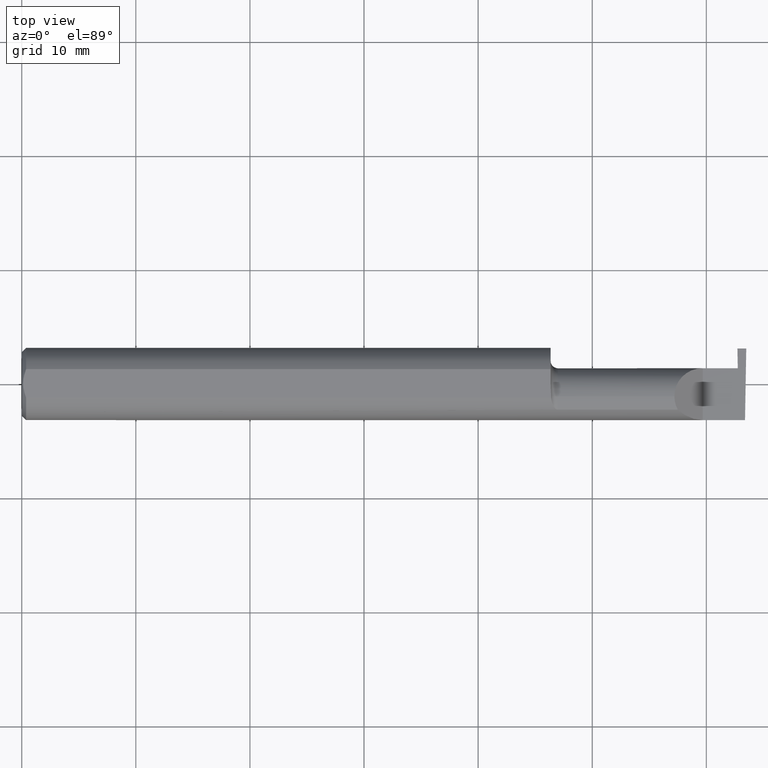
[diagram: clean part render]
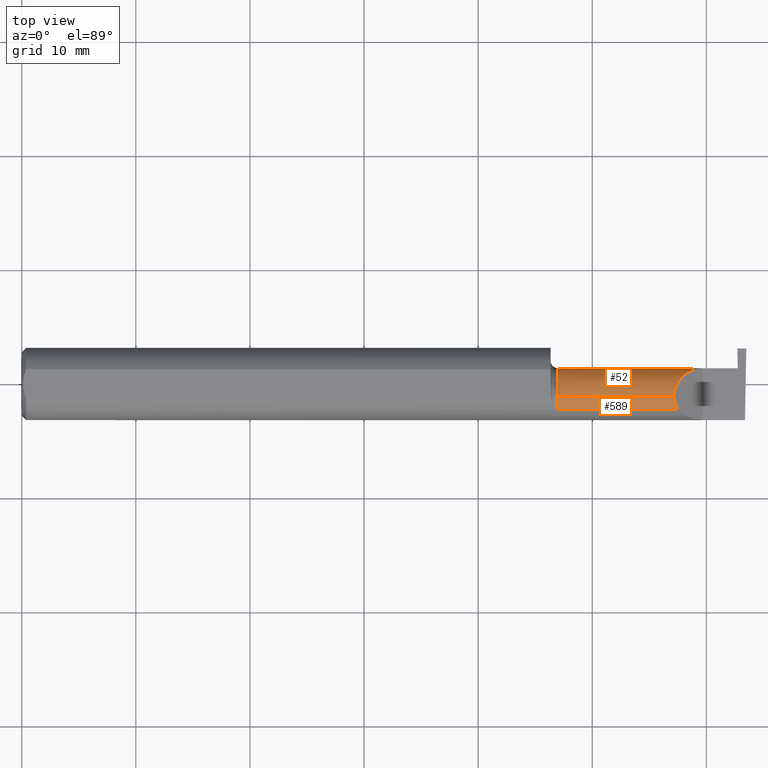
[diagram: same view with one multi-face feature highlighted, each face labeled with its STEP entity id]
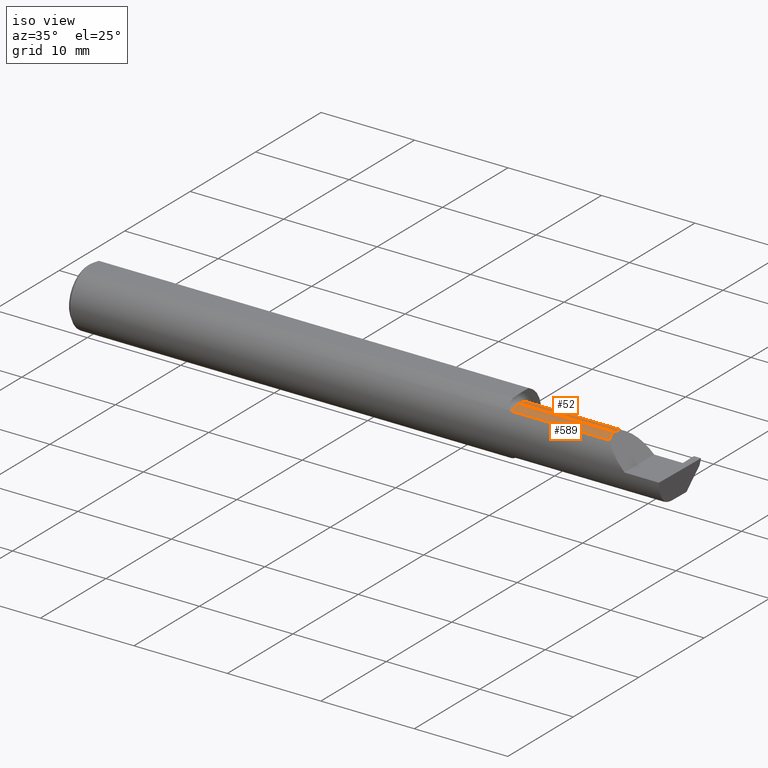
[diagram: same view with one multi-face feature highlighted, each face labeled with its STEP entity id]
A machine part, top view. The highlighted faces form ONE feature: a constant-radius fillet chain: 2 tangent blend faces with common blend radius 2.4892 mm. The faces share edges in the B-rep.
A second angle (iso view) of the same feature is appended — it is thin or edge-on in the first view.
Their STEP definitions:
[1] entity #589 (Cylinder):
#25 = VECTOR ( 'NONE', #637, 39.37007874015748143 ) ;
#94 = DIRECTION ( 'NONE',  ( 0.000000000000000000, 0.000000000000000000, 1.000000000000000000 ) ) ;
#103 = DIRECTION ( 'NONE',  ( -1.000000000000000000, -0.000000000000000000, -0.000000000000000000 ) ) ;
#115 =( BOUNDED_CURVE ( )  B_SPLINE_CURVE ( 3, ( #499, #616, #260, #745 ),
 .UNSPECIFIED., .F., .F. ) 
 B_SPLINE_CURVE_WITH_KNOTS ( ( 4, 4 ),
 ( 5.791092865617128993, 6.283185307179586232 ),
 .UNSPECIFIED. ) 
 CURVE ( )  GEOMETRIC_REPRESENTATION_ITEM ( )  RATIONAL_B_SPLINE_CURVE ( ( 1.000000000000000000, 0.9799220177372781615, 0.9799220177372781615, 1.000000000000000000 ) ) 
 REPRESENTATION_ITEM ( '' )  );
#133 = VERTEX_POINT ( 'NONE', #624 ) ;
#155 = ORIENTED_EDGE ( 'NONE', *, *, #322, .F. ) ;
#180 = CARTESIAN_POINT ( 'NONE',  ( 1.824999999999999956, -0.04385000000000001397, 0.09799999999999998990 ) ) ;
#186 = DIRECTION ( 'NONE',  ( 0.000000000000000000, 0.000000000000000000, 1.000000000000000000 ) ) ;
#191 = CARTESIAN_POINT ( 'NONE',  ( 2.263628075281542973, -0.09015216647662456506, 0.08637192471845794861 ) ) ;
#212 = CARTESIAN_POINT ( 'NONE',  ( 2.159749999999999837, -0.09015216647662485649, 0.08637192471845764330 ) ) ;
#243 = CIRCLE ( 'NONE', #560, 0.09799999999999998990 ) ;
#260 = CARTESIAN_POINT ( 'NONE',  ( 2.252000000000000668, -0.06008937020638518284, 0.09799999999999996214 ) ) ;
#275 = LINE ( 'NONE', #212, #25 ) ;
#297 = ORIENTED_EDGE ( 'NONE', *, *, #617, .T. ) ;
#322 = EDGE_CURVE ( 'NONE', #728, #563, #243, .T. ) ;
#326 = ORIENTED_EDGE ( 'NONE', *, *, #375, .T. ) ;
#351 = CARTESIAN_POINT ( 'NONE',  ( 1.824999999999999956, -0.04385000000000001397, 0.000000000000000000 ) ) ;
#375 = EDGE_CURVE ( 'NONE', #133, #563, #542, .T. ) ;
#394 = CYLINDRICAL_SURFACE ( 'NONE', #715, 0.09799999999999998990 ) ;
#415 = CARTESIAN_POINT ( 'NONE',  ( 1.849999999999999867, -0.04385000000000001397, 0.000000000000000000 ) ) ;
#434 = CARTESIAN_POINT ( 'NONE',  ( 1.849999999999999867, -0.04385000000000001397, 0.09800000000000000377 ) ) ;
#440 = FACE_OUTER_BOUND ( 'NONE', #641, .T. ) ;
#459 = VERTEX_POINT ( 'NONE', #191 ) ;
#499 = CARTESIAN_POINT ( 'NONE',  ( 2.263628075281542973, -0.09015216647662456506, 0.08637192471845794861 ) ) ;
#542 = LINE ( 'NONE', #180, #787 ) ;
#560 = AXIS2_PLACEMENT_3D ( 'NONE', #415, #598, #186 ) ;
#563 = VERTEX_POINT ( 'NONE', #434 ) ;
#568 = EDGE_CURVE ( 'NONE', #459, #133, #115, .T. ) ;
#583 = CARTESIAN_POINT ( 'NONE',  ( 1.849999999999999867, -0.09015216647662489813, 0.08637192471845762942 ) ) ;
#589 = ADVANCED_FACE ( 'NONE', ( #440 ), #394, .T. ) ;
#598 = DIRECTION ( 'NONE',  ( -1.000000000000000000, -0.000000000000000000, -0.000000000000000000 ) ) ;
#616 = CARTESIAN_POINT ( 'NONE',  ( 2.255955442396119004, -0.07583965973232800750, 0.09404455760388212571 ) ) ;
#617 = EDGE_CURVE ( 'NONE', #728, #459, #275, .T. ) ;
#624 = CARTESIAN_POINT ( 'NONE',  ( 2.252000000000000668, -0.04385000000000001397, 0.09799999999999998990 ) ) ;
#637 = DIRECTION ( 'NONE',  ( 1.000000000000000000, 0.000000000000000000, 0.000000000000000000 ) ) ;
#641 = EDGE_LOOP ( 'NONE', ( #691, #326, #155, #297 ) ) ;
#652 = DIRECTION ( 'NONE',  ( -1.000000000000000000, -0.000000000000000000, -0.000000000000000000 ) ) ;
#691 = ORIENTED_EDGE ( 'NONE', *, *, #568, .T. ) ;
#715 = AXIS2_PLACEMENT_3D ( 'NONE', #351, #103, #94 ) ;
#728 = VERTEX_POINT ( 'NONE', #583 ) ;
#745 = CARTESIAN_POINT ( 'NONE',  ( 2.252000000000000668, -0.04385000000000001397, 0.09799999999999998990 ) ) ;
#787 = VECTOR ( 'NONE', #652, 39.37007874015748143 ) ;
[2] entity #52 (Cylinder):
#4 = ORIENTED_EDGE ( 'NONE', *, *, #484, .F. ) ;
#8 = VERTEX_POINT ( 'NONE', #549 ) ;
#17 = DIRECTION ( 'NONE',  ( 0.000000000000000000, 0.000000000000000000, 1.000000000000000000 ) ) ;
#26 = LINE ( 'NONE', #625, #113 ) ;
#45 = DIRECTION ( 'NONE',  ( -1.000000000000000000, -0.000000000000000000, -0.000000000000000000 ) ) ;
#52 = ADVANCED_FACE ( 'NONE', ( #748 ), #204, .T. ) ;
#57 = AXIS2_PLACEMENT_3D ( 'NONE', #500, #213, #17 ) ;
#63 = EDGE_CURVE ( 'NONE', #681, #8, #738, .T. ) ;
#65 = ORIENTED_EDGE ( 'NONE', *, *, #544, .T. ) ;
#87 = CARTESIAN_POINT ( 'NONE',  ( 2.350000000000000089, 0.05414999999999985103, 1.836970198721028825E-17 ) ) ;
#113 = VECTOR ( 'NONE', #386, 39.37007874015748143 ) ;
#125 = AXIS2_PLACEMENT_3D ( 'NONE', #581, #45, #290 ) ;
#133 = VERTEX_POINT ( 'NONE', #624 ) ;
#134 = CARTESIAN_POINT ( 'NONE',  ( 2.474354867654527723, 0.002850604310161250488, -0.09800000000000003153 ) ) ;
#149 = CARTESIAN_POINT ( 'NONE',  ( 1.824999999999999956, 0.05414999999999996899, 8.266365894244626938E-17 ) ) ;
#151 = EDGE_CURVE ( 'NONE', #133, #681, #614, .T. ) ;
#180 = CARTESIAN_POINT ( 'NONE',  ( 1.824999999999999956, -0.04385000000000001397, 0.09799999999999998990 ) ) ;
#194 = CARTESIAN_POINT ( 'NONE',  ( 2.474353376795600301, -0.04385000000000004172, -0.09799999999999998990 ) ) ;
#204 = CYLINDRICAL_SURFACE ( 'NONE', #57, 0.09799999999999998990 ) ;
#213 = DIRECTION ( 'NONE',  ( -1.000000000000000000, -0.000000000000000000, -0.000000000000000000 ) ) ;
#242 = ORIENTED_EDGE ( 'NONE', *, *, #257, .F. ) ;
#257 = EDGE_CURVE ( 'NONE', #563, #523, #643, .T. ) ;
#268 = CARTESIAN_POINT ( 'NONE',  ( 2.470160734290016702, 0.05314349951121604548, -0.01618353831829628942 ) ) ;
#278 = CARTESIAN_POINT ( 'NONE',  ( 2.474353376795600301, -0.04385000000000004172, -0.09799999999999998990 ) ) ;
#290 = DIRECTION ( 'NONE',  ( 0.000000000000000000, 0.000000000000000000, 1.000000000000000000 ) ) ;
#318 = DIRECTION ( 'NONE',  ( 0.000000000000000000, 0.000000000000000000, 1.000000000000000000 ) ) ;
#328 = CARTESIAN_POINT ( 'NONE',  ( 2.469831655309489893, 0.05414656493488106265, -0.008143655253979704967 ) ) ;
#330 = ORIENTED_EDGE ( 'NONE', *, *, #555, .T. ) ;
#375 = EDGE_CURVE ( 'NONE', #133, #563, #542, .T. ) ;
#379 = CARTESIAN_POINT ( 'NONE',  ( 2.472853341463135290, 0.03970102213383032430, -0.06931214282740398580 ) ) ;
#386 = DIRECTION ( 'NONE',  ( -1.000000000000000000, -0.000000000000000000, -0.000000000000000000 ) ) ;
#391 = CARTESIAN_POINT ( 'NONE',  ( 2.469500000000000028, -0.04385000000000001397, 0.000000000000000000 ) ) ;
#396 = AXIS2_PLACEMENT_3D ( 'NONE', #391, #565, #318 ) ;
#416 = ORIENTED_EDGE ( 'NONE', *, *, #151, .T. ) ;
#434 = CARTESIAN_POINT ( 'NONE',  ( 1.849999999999999867, -0.04385000000000001397, 0.09800000000000000377 ) ) ;
#435 = ORIENTED_EDGE ( 'NONE', *, *, #63, .T. ) ;
#460 = EDGE_CURVE ( 'NONE', #653, #567, #633, .T. ) ;
#469 = CARTESIAN_POINT ( 'NONE',  ( 2.350000000000000089, 0.05414999999999985103, 1.836970198721028825E-17 ) ) ;
#484 = EDGE_CURVE ( 'NONE', #567, #672, #720, .T. ) ;
#500 = CARTESIAN_POINT ( 'NONE',  ( 1.824999999999999956, -0.04385000000000001397, 0.000000000000000000 ) ) ;
#508 = CARTESIAN_POINT ( 'NONE',  ( 2.470482208140545755, 0.05115612325138272493, -0.02403823089877876393 ) ) ;
#521 = CARTESIAN_POINT ( 'NONE',  ( 2.252000000000000668, 0.01355707088743669450, 0.09799999999999996214 ) ) ;
#523 = VERTEX_POINT ( 'NONE', #752 ) ;
#542 = LINE ( 'NONE', #180, #787 ) ;
#544 = EDGE_CURVE ( 'NONE', #8, #672, #630, .T. ) ;
#549 = CARTESIAN_POINT ( 'NONE',  ( 2.469500000000000028, 0.05415000000000000369, 8.266350036991706304E-17 ) ) ;
#555 = EDGE_CURVE ( 'NONE', #653, #523, #26, .T. ) ;
#563 = VERTEX_POINT ( 'NONE', #434 ) ;
#565 = DIRECTION ( 'NONE',  ( -1.000000000000000000, -0.000000000000000000, -0.000000000000000000 ) ) ;
#567 = VERTEX_POINT ( 'NONE', #508 ) ;
#581 = CARTESIAN_POINT ( 'NONE',  ( 1.849999999999999867, -0.04385000000000001397, 0.000000000000000000 ) ) ;
#582 = ORIENTED_EDGE ( 'NONE', *, *, #460, .F. ) ;
#612 = CARTESIAN_POINT ( 'NONE',  ( 2.469500000000000028, 0.05414999123725609820, -4.144270477499234761E-05 ) ) ;
#614 =( BOUNDED_CURVE ( )  B_SPLINE_CURVE ( 3, ( #707, #521, #640, #87 ),
 .UNSPECIFIED., .F., .T. ) 
 B_SPLINE_CURVE_WITH_KNOTS ( ( 4, 4 ),
 ( 0.000000000000000000, 1.570796326794896558 ),
 .UNSPECIFIED. ) 
 CURVE ( )  GEOMETRIC_REPRESENTATION_ITEM ( )  RATIONAL_B_SPLINE_CURVE ( ( 1.000000000000000000, 0.8047378541243649375, 0.8047378541243649375, 1.000000000000000000 ) ) 
 REPRESENTATION_ITEM ( '' )  );
#624 = CARTESIAN_POINT ( 'NONE',  ( 2.252000000000000668, -0.04385000000000001397, 0.09799999999999998990 ) ) ;
#625 = CARTESIAN_POINT ( 'NONE',  ( 1.824999999999999956, -0.04385000000000000703, -0.09799999999999998990 ) ) ;
#626 = DIRECTION ( 'NONE',  ( 1.000000000000000000, 0.000000000000000000, 0.000000000000000000 ) ) ;
#630 = CIRCLE ( 'NONE', #396, 0.09800000000000000377 ) ;
#632 = EDGE_LOOP ( 'NONE', ( #582, #330, #242, #780, #416, #435, #65, #4 ) ) ;
#633 =( BOUNDED_CURVE ( )  B_SPLINE_CURVE ( 3, ( #194, #134, #379, #671 ),
 .UNSPECIFIED., .F., .T. ) 
 B_SPLINE_CURVE_WITH_KNOTS ( ( 4, 4 ),
 ( 3.140983202202990654, 4.463962699426421210 ),
 .UNSPECIFIED. ) 
 CURVE ( )  GEOMETRIC_REPRESENTATION_ITEM ( )  RATIONAL_B_SPLINE_CURVE ( ( 1.000000000000000000, 0.8593853101475603662, 0.8593853101475603662, 1.000000000000000000 ) ) 
 REPRESENTATION_ITEM ( '' )  );
#640 = CARTESIAN_POINT ( 'NONE',  ( 2.292592929112563738, 0.05415000000000001062, 0.05740707088743667724 ) ) ;
#643 = CIRCLE ( 'NONE', #125, 0.09799999999999998990 ) ;
#652 = DIRECTION ( 'NONE',  ( -1.000000000000000000, -0.000000000000000000, -0.000000000000000000 ) ) ;
#653 = VERTEX_POINT ( 'NONE', #278 ) ;
#671 = CARTESIAN_POINT ( 'NONE',  ( 2.470482208140545755, 0.05115612325138272493, -0.02403823089877876393 ) ) ;
#672 = VERTEX_POINT ( 'NONE', #712 ) ;
#674 = CARTESIAN_POINT ( 'NONE',  ( 2.470482208140545755, 0.05115612325138272493, -0.02403823089877876393 ) ) ;
#681 = VERTEX_POINT ( 'NONE', #469 ) ;
#707 = CARTESIAN_POINT ( 'NONE',  ( 2.252000000000000668, -0.04385000000000001397, 0.09799999999999998990 ) ) ;
#712 = CARTESIAN_POINT ( 'NONE',  ( 2.469500000000000028, 0.05414999123725609820, -4.144270477499234761E-05 ) ) ;
#720 =( BOUNDED_CURVE ( )  B_SPLINE_CURVE ( 3, ( #674, #268, #328, #612 ),
 .UNSPECIFIED., .F., .F. ) 
 B_SPLINE_CURVE_WITH_KNOTS ( ( 4, 4 ),
 ( 4.463962699426424763, 4.711356644242684411 ),
 .UNSPECIFIED. ) 
 CURVE ( )  GEOMETRIC_REPRESENTATION_ITEM ( )  RATIONAL_B_SPLINE_CURVE ( ( 1.000000000000000000, 0.9949061863229000657, 0.9949061863229000657, 1.000000000000000000 ) ) 
 REPRESENTATION_ITEM ( '' )  );
#738 = LINE ( 'NONE', #149, #746 ) ;
#746 = VECTOR ( 'NONE', #626, 39.37007874015748143 ) ;
#748 = FACE_OUTER_BOUND ( 'NONE', #632, .T. ) ;
#752 = CARTESIAN_POINT ( 'NONE',  ( 1.849999999999999867, -0.04385000000000000009, -0.09800000000000000377 ) ) ;
#780 = ORIENTED_EDGE ( 'NONE', *, *, #375, .F. ) ;
#787 = VECTOR ( 'NONE', #652, 39.37007874015748143 ) ;